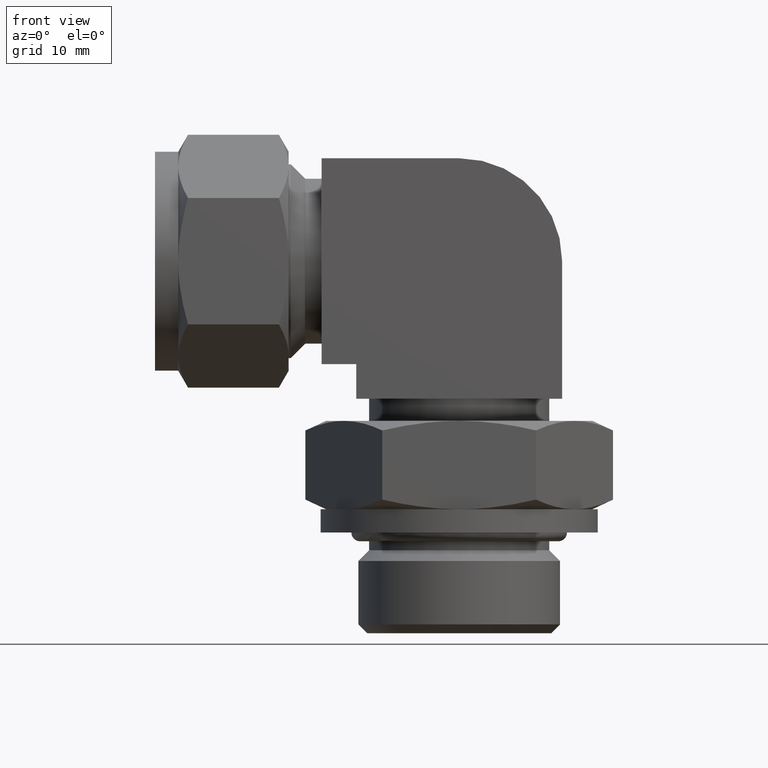
[diagram: clean part render]
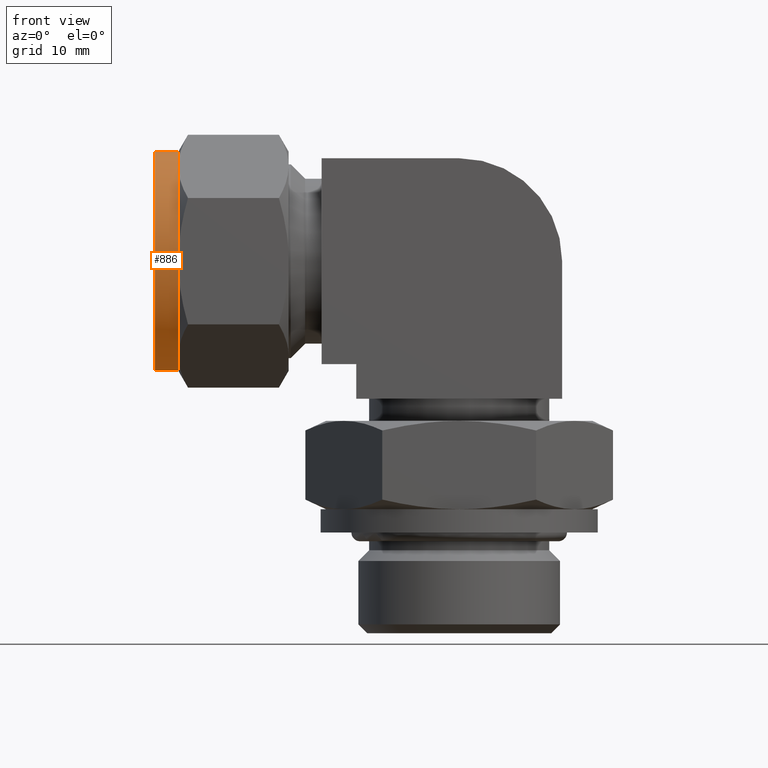
[diagram: same view with one face highlighted and labeled with its STEP entity id]
A machine part, front view. The second image highlights one B-rep face of the part: STEP entity #886.
In plain terms, the highlighted cylindrical surface (partial cylindrical patch) has radius 14.351 mm, axis along (1, 0, 0).
Its self-contained STEP definition (entity closure, byte-faithful):
#43 = CARTESIAN_POINT ( 'NONE',  ( 10.28699999999999903, 0.000000000000000000, -2.566169499118589674E-15 ) ) ;
#88 = EDGE_CURVE ( 'NONE', #2448, #1861, #1397, .T. ) ;
#158 = EDGE_CURVE ( 'NONE', #296, #2256, #1960, .T. ) ;
#159 = AXIS2_PLACEMENT_3D ( 'NONE', #2227, #2254, #884 ) ;
#250 = DIRECTION ( 'NONE',  ( 1.000000000000000000, 0.000000000000000000, 2.220446049250309876E-16 ) ) ;
#296 = VERTEX_POINT ( 'NONE', #2226 ) ;
#301 = LINE ( 'NONE', #312, #1168 ) ;
#312 = CARTESIAN_POINT ( 'NONE',  ( 10.28699999999999903, 1.757432578370490034E-15, 14.35099999999999909 ) ) ;
#357 = AXIS2_PLACEMENT_3D ( 'NONE', #816, #2349, #2328 ) ;
#399 = CARTESIAN_POINT ( 'NONE',  ( 3.048000000000000043, -14.35099999999999909, -7.698508497355758766E-15 ) ) ;
#453 = CARTESIAN_POINT ( 'NONE',  ( 3.186562125279119762E-15, -1.757432578370490034E-15, -14.35099999999999909 ) ) ;
#456 = EDGE_CURVE ( 'NONE', #1956, #2448, #1082, .T. ) ;
#466 = DIRECTION ( 'NONE',  ( 1.000000000000000000, 0.000000000000000000, 2.220446049250309876E-16 ) ) ;
#536 = LINE ( 'NONE', #1229, #1893 ) ;
#557 = EDGE_LOOP ( 'NONE', ( #1754, #2354, #741, #1105, #2125, #1722, #2373 ) ) ;
#559 = CIRCLE ( 'NONE', #159, 14.35099999999999909 ) ;
#741 = ORIENTED_EDGE ( 'NONE', *, *, #2015, .F. ) ;
#757 = AXIS2_PLACEMENT_3D ( 'NONE', #43, #466, #1790 ) ;
#816 = CARTESIAN_POINT ( 'NONE',  ( 3.048000000000000043, 0.000000000000000000, -4.173550394170889906E-15 ) ) ;
#874 = AXIS2_PLACEMENT_3D ( 'NONE', #1975, #250, #2052 ) ;
#884 = DIRECTION ( 'NONE',  ( -2.115369021642681672E-16, 0.000000000000000000, 1.000000000000000000 ) ) ;
#886 = ADVANCED_FACE ( 'NONE', ( #1024 ), #1214, .T. ) ;
#1019 = DIRECTION ( 'NONE',  ( -1.000000000000000000, 1.359586170115859931E-32, -2.220446049250309876E-16 ) ) ;
#1024 = FACE_OUTER_BOUND ( 'NONE', #557, .T. ) ;
#1082 = CIRCLE ( 'NONE', #357, 14.35099999999999909 ) ;
#1105 = ORIENTED_EDGE ( 'NONE', *, *, #456, .T. ) ;
#1117 = AXIS2_PLACEMENT_3D ( 'NONE', #1193, #1019, #1941 ) ;
#1168 = VECTOR ( 'NONE', #1463, 1000.000000000000000 ) ;
#1193 = CARTESIAN_POINT ( 'NONE',  ( 3.048000000000000043, 0.000000000000000000, -4.173550394170889906E-15 ) ) ;
#1214 = CYLINDRICAL_SURFACE ( 'NONE', #757, 14.35099999999999909 ) ;
#1229 = CARTESIAN_POINT ( 'NONE',  ( 10.28699999999999903, -1.757432578370490034E-15, -14.35099999999999909 ) ) ;
#1264 = DIRECTION ( 'NONE',  ( -2.115369021642681672E-16, 0.000000000000000000, 1.000000000000000000 ) ) ;
#1397 = CIRCLE ( 'NONE', #1117, 14.35099999999999909 ) ;
#1463 = DIRECTION ( 'NONE',  ( 1.000000000000000000, 0.000000000000000000, 2.220446049250309876E-16 ) ) ;
#1465 = DIRECTION ( 'NONE',  ( -1.000000000000000000, 1.359586170115859931E-32, -2.220446049250309876E-16 ) ) ;
#1476 = CARTESIAN_POINT ( 'NONE',  ( 3.048000000000000043, 0.000000000000000000, -4.173550394170889906E-15 ) ) ;
#1478 = EDGE_CURVE ( 'NONE', #1861, #2262, #559, .T. ) ;
#1480 = EDGE_CURVE ( 'NONE', #2262, #1793, #2047, .T. ) ;
#1543 = EDGE_CURVE ( 'NONE', #296, #1793, #301, .T. ) ;
#1604 = CARTESIAN_POINT ( 'NONE',  ( 3.048000000000000043, -7.175499999999999545, 12.42833056971049999 ) ) ;
#1722 = ORIENTED_EDGE ( 'NONE', *, *, #1478, .T. ) ;
#1754 = ORIENTED_EDGE ( 'NONE', *, *, #1543, .F. ) ;
#1790 = DIRECTION ( 'NONE',  ( -2.417564596163064909E-16, 0.000000000000000000, 1.000000000000000000 ) ) ;
#1793 = VERTEX_POINT ( 'NONE', #2072 ) ;
#1807 = DIRECTION ( 'NONE',  ( -1.000000000000000000, 0.000000000000000000, -2.220446049250309876E-16 ) ) ;
#1822 = CARTESIAN_POINT ( 'NONE',  ( 3.048000000000000043, 1.757432578370490034E-15, -14.35099999999999909 ) ) ;
#1829 = CARTESIAN_POINT ( 'NONE',  ( 3.048000000000000043, -7.175499999999999545, -12.42833056971049999 ) ) ;
#1861 = VERTEX_POINT ( 'NONE', #399 ) ;
#1893 = VECTOR ( 'NONE', #1807, 1000.000000000000000 ) ;
#1941 = DIRECTION ( 'NONE',  ( -2.115369021642681672E-16, 0.000000000000000000, 1.000000000000000000 ) ) ;
#1956 = VERTEX_POINT ( 'NONE', #1822 ) ;
#1960 = CIRCLE ( 'NONE', #874, 14.35099999999999909 ) ;
#1975 = CARTESIAN_POINT ( 'NONE',  ( 0.000000000000000000, 0.000000000000000000, -4.850342349982379426E-15 ) ) ;
#2015 = EDGE_CURVE ( 'NONE', #1956, #2256, #536, .T. ) ;
#2047 = CIRCLE ( 'NONE', #2449, 14.35099999999999909 ) ;
#2052 = DIRECTION ( 'NONE',  ( -2.220446049250309876E-16, 0.000000000000000000, 1.000000000000000000 ) ) ;
#2072 = CARTESIAN_POINT ( 'NONE',  ( 3.048000000000000043, -1.757432578370490034E-15, 14.35099999999999909 ) ) ;
#2125 = ORIENTED_EDGE ( 'NONE', *, *, #88, .T. ) ;
#2226 = CARTESIAN_POINT ( 'NONE',  ( -2.819966482547900216E-15, 1.337515059644799985E-15, 14.35099999999999909 ) ) ;
#2227 = CARTESIAN_POINT ( 'NONE',  ( 3.048000000000000043, 0.000000000000000000, -4.173550394170889906E-15 ) ) ;
#2254 = DIRECTION ( 'NONE',  ( -1.000000000000000000, 1.359586170115859931E-32, -2.220446049250309876E-16 ) ) ;
#2256 = VERTEX_POINT ( 'NONE', #453 ) ;
#2262 = VERTEX_POINT ( 'NONE', #1604 ) ;
#2328 = DIRECTION ( 'NONE',  ( -2.115369021642681672E-16, 0.000000000000000000, 1.000000000000000000 ) ) ;
#2349 = DIRECTION ( 'NONE',  ( -1.000000000000000000, 1.359586170115859931E-32, -2.220446049250309876E-16 ) ) ;
#2354 = ORIENTED_EDGE ( 'NONE', *, *, #158, .T. ) ;
#2373 = ORIENTED_EDGE ( 'NONE', *, *, #1480, .T. ) ;
#2448 = VERTEX_POINT ( 'NONE', #1829 ) ;
#2449 = AXIS2_PLACEMENT_3D ( 'NONE', #1476, #1465, #1264 ) ;